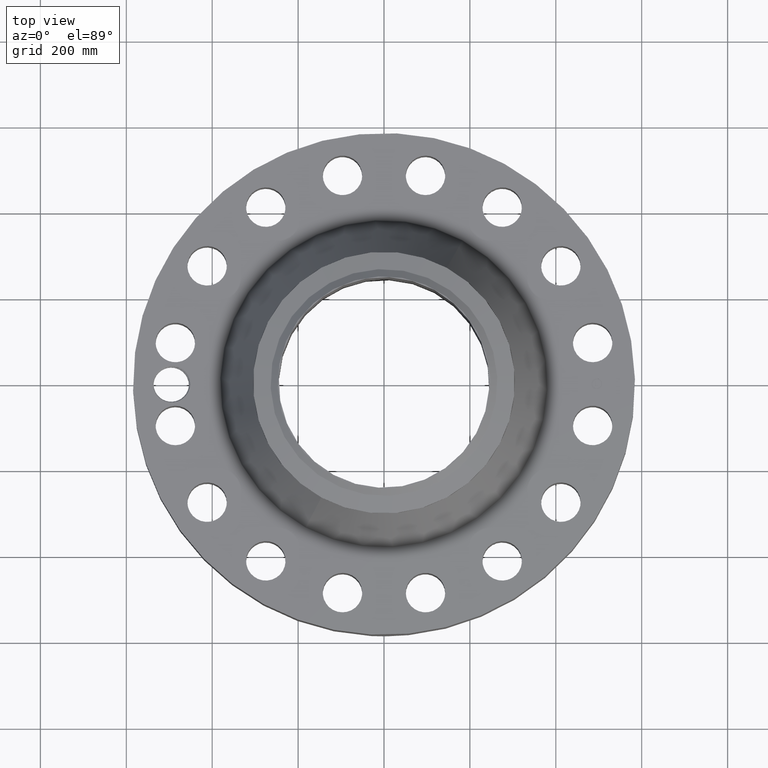
[diagram: clean part render]
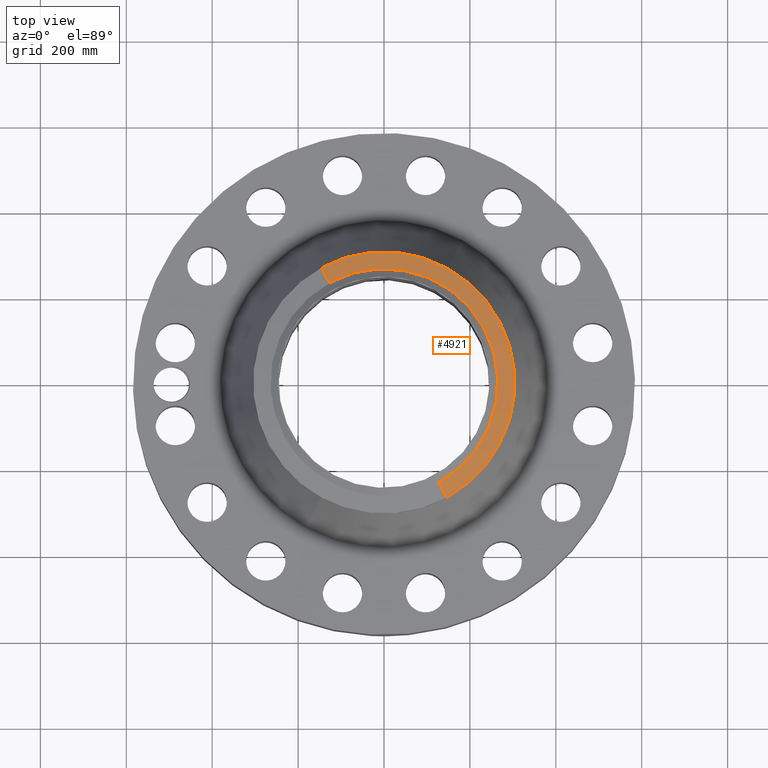
[diagram: same view with one face highlighted and labeled with its STEP entity id]
A machine part, top view. The second image highlights one B-rep face of the part: STEP entity #4921.
In plain terms, the highlighted conical surface has half-angle 80 deg.
Its self-contained STEP definition (entity closure, byte-faithful):
#3739=AXIS2_PLACEMENT_3D('Circle Axis2P3D',#3737,#3738,$) ;
#3766=AXIS2_PLACEMENT_3D('Circle Axis2P3D',#3764,#3765,$) ;
#4893=AXIS2_PLACEMENT_3D('Cone Axis2P3D',#4890,#4891,#4892) ;
#4904=AXIS2_PLACEMENT_3D('Circle Axis2P3D',#4902,#4903,$) ;
#3734=CARTESIAN_POINT('Vertex',(5.75310646327,10.5309907427,15.4550223855)) ;
#3737=CARTESIAN_POINT('Axis2P3D Location',(0.,0.,15.4550223855)) ;
#3741=CARTESIAN_POINT('Vertex',(5.75310646327,-10.5309907427,15.4550223855)) ;
#3761=CARTESIAN_POINT('Vertex',(-5.75310646327,10.5309907427,15.4550223855)) ;
#3764=CARTESIAN_POINT('Axis2P3D Location',(0.,0.,15.4550223855)) ;
#4890=CARTESIAN_POINT('Axis2P3D Location',(0.,0.,15.7314160193)) ;
#4895=CARTESIAN_POINT('Line Origine',(-5.37735521355,9.84318269369,15.5932192024)) ;
#4899=CARTESIAN_POINT('Vertex',(-5.00160396383,9.15537464465,15.7314160193)) ;
#4902=CARTESIAN_POINT('Axis2P3D Location',(0.,0.,15.7314160193)) ;
#4906=CARTESIAN_POINT('Vertex',(5.00160396383,-9.15537464465,15.7314160193)) ;
#4909=CARTESIAN_POINT('Line Origine',(5.37735521355,-9.84318269369,15.5932192024)) ;
#3738=DIRECTION('Axis2P3D Direction',(0.,0.,-0.0393700787402)) ;
#3765=DIRECTION('Axis2P3D Direction',(0.,0.,-0.0393700787402)) ;
#4891=DIRECTION('Axis2P3D Direction',(-0.,-0.,-0.0393700787402)) ;
#4892=DIRECTION('Axis2P3D XDirection',(0.0188750212049,-0.0345504945626,0.)) ;
#4896=DIRECTION('Vector Direction',(-0.0185882672208,0.0340255949157,-0.00683654242783)) ;
#4903=DIRECTION('Axis2P3D Direction',(0.,0.,-0.0393700787402)) ;
#4910=DIRECTION('Vector Direction',(0.0185882672208,-0.0340255949157,-0.00683654242783)) ;
#4897=VECTOR('Line Direction',#4896,0.0393700787402) ;
#4911=VECTOR('Line Direction',#4910,0.0393700787402) ;
#4915=ORIENTED_EDGE('',*,*,#4901,.F.) ;
#4916=ORIENTED_EDGE('',*,*,#4908,.F.) ;
#4917=ORIENTED_EDGE('',*,*,#4913,.T.) ;
#4918=ORIENTED_EDGE('',*,*,#3743,.T.) ;
#4919=ORIENTED_EDGE('',*,*,#3768,.F.) ;
#4921=ADVANCED_FACE('PartBody',(#4920),#4894,.T.) ;
#3740=CIRCLE('generated circle',#3739,12.) ;
#3767=CIRCLE('generated circle',#3766,12.) ;
#4905=CIRCLE('generated circle',#4904,10.43249381) ;
#4894=CONICAL_SURFACE('Cone',#4893,10.43249381,1.3962634016) ;
#3743=EDGE_CURVE('',#3742,#3735,#3740,.F.) ;
#3768=EDGE_CURVE('',#3762,#3735,#3767,.T.) ;
#4901=EDGE_CURVE('',#4900,#3762,#4898,.T.) ;
#4908=EDGE_CURVE('',#4907,#4900,#4905,.F.) ;
#4913=EDGE_CURVE('',#4907,#3742,#4912,.T.) ;
#4914=EDGE_LOOP('',(#4915,#4916,#4917,#4918,#4919)) ;
#4920=FACE_OUTER_BOUND('',#4914,.T.) ;
#4898=LINE('Line',#4895,#4897) ;
#4912=LINE('Line',#4909,#4911) ;
#3735=VERTEX_POINT('',#3734) ;
#3742=VERTEX_POINT('',#3741) ;
#3762=VERTEX_POINT('',#3761) ;
#4900=VERTEX_POINT('',#4899) ;
#4907=VERTEX_POINT('',#4906) ;